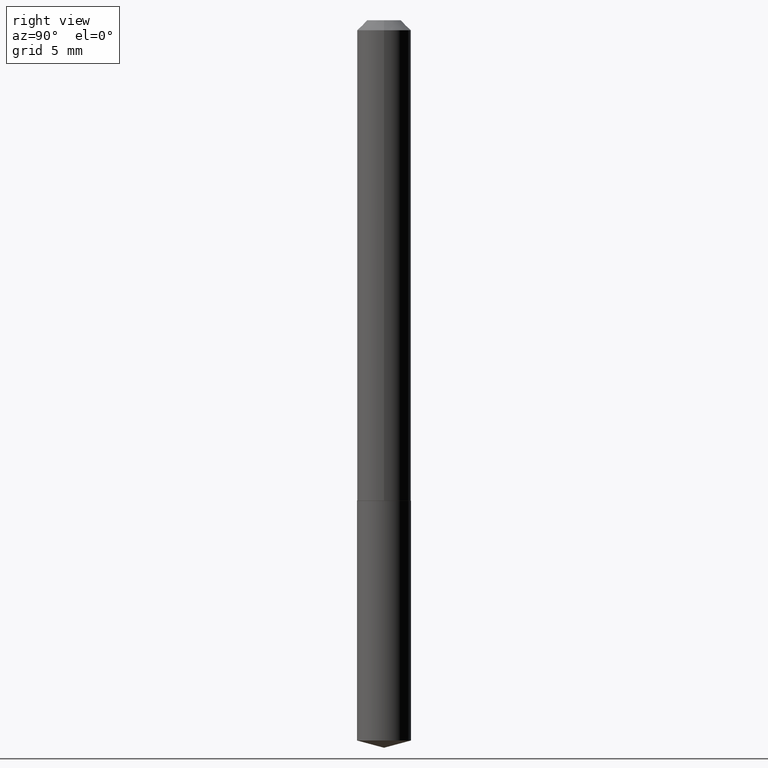
[diagram: clean part render]
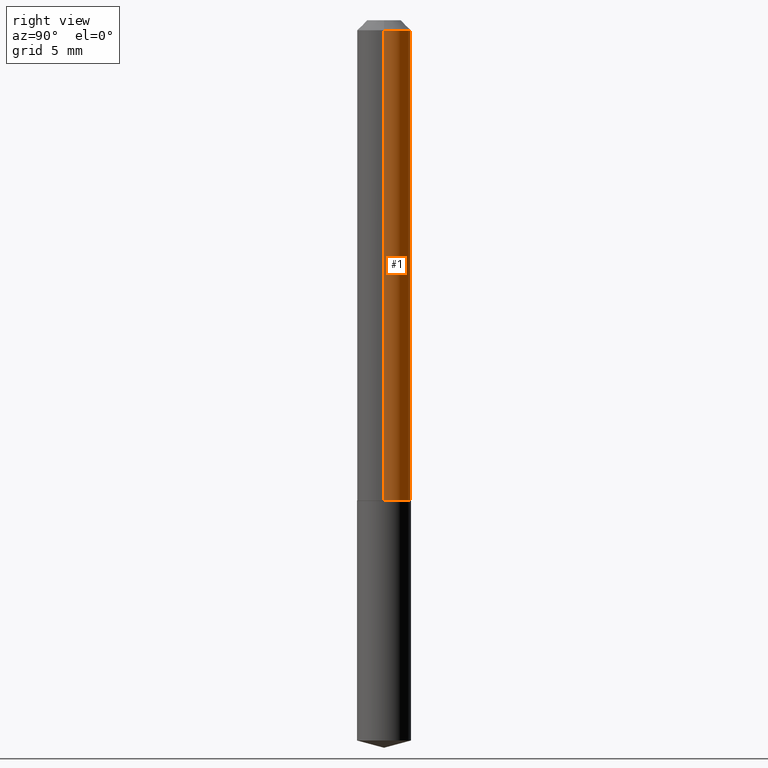
[diagram: same view with one face highlighted and labeled with its STEP entity id]
A machine part, right view. The second image highlights one B-rep face of the part: STEP entity #1.
In plain terms, the highlighted cylindrical surface (edge-blend (fillet) strip) has radius 2.1501 mm, axis along (-0, 0, 1).
Its self-contained STEP definition (entity closure, byte-faithful):
#1 = ADVANCED_FACE ( 'NONE', ( #94 ), #84, .T. ) ;
#11 = DIRECTION ( 'NONE',  ( -2.445468806185136877E-29, 3.491481338843145188E-15, 1.000000000000000000 ) ) ;
#18 = AXIS2_PLACEMENT_3D ( 'NONE', #199, #40, #160 ) ;
#27 = CARTESIAN_POINT ( 'NONE',  ( 0.000000000000000000, 0.000000000000000000, 0.000000000000000000 ) ) ;
#28 = LINE ( 'NONE', #109, #99 ) ;
#40 = DIRECTION ( 'NONE',  ( -2.445468806185136597E-29, 3.491481338843145583E-15, 1.000000000000000000 ) ) ;
#84 = CYLINDRICAL_SURFACE ( 'NONE', #218, 0.08465000000000010016 ) ;
#85 = EDGE_CURVE ( 'NONE', #130, #168, #275, .T. ) ;
#91 = ORIENTED_EDGE ( 'NONE', *, *, #85, .T. ) ;
#94 = FACE_OUTER_BOUND ( 'NONE', #274, .T. ) ;
#99 = VECTOR ( 'NONE', #321, 39.37007874015748143 ) ;
#109 = CARTESIAN_POINT ( 'NONE',  ( -0.08465000000000010016, 6.014744258209255191E-16, -4.163878553900782059E-30 ) ) ;
#118 = DIRECTION ( 'NONE',  ( -2.445468806185136597E-29, 3.491481338843145583E-15, 1.000000000000000000 ) ) ;
#130 = VERTEX_POINT ( 'NONE', #220 ) ;
#132 = ORIENTED_EDGE ( 'NONE', *, *, #200, .T. ) ;
#160 = DIRECTION ( 'NONE',  ( 1.000000000000000000, -6.982962677686265922E-15, 0.000000000000000000 ) ) ;
#168 = VERTEX_POINT ( 'NONE', #191 ) ;
#180 = CARTESIAN_POINT ( 'NONE',  ( 3.686299678443475330E-29, -5.263058970172158007E-15, -1.507400000000000073 ) ) ;
#182 = CIRCLE ( 'NONE', #18, 0.08465000000000001690 ) ;
#191 = CARTESIAN_POINT ( 'NONE',  ( -0.08465000000000018343, -4.661584544351232390E-15, -1.507400000000000073 ) ) ;
#196 = LINE ( 'NONE', #291, #219 ) ;
#199 = CARTESIAN_POINT ( 'NONE',  ( 7.642090019328601786E-31, -1.091087918388490144E-16, -0.03125000000000020123 ) ) ;
#200 = EDGE_CURVE ( 'NONE', #168, #250, #28, .T. ) ;
#202 = DIRECTION ( 'NONE',  ( 1.000000000000000000, -6.982962677686265922E-15, 4.876176775795935232E-29 ) ) ;
#212 = DIRECTION ( 'NONE',  ( 1.000000000000000000, -6.982962677686266711E-15, 0.000000000000000000 ) ) ;
#215 = ORIENTED_EDGE ( 'NONE', *, *, #277, .F. ) ;
#218 = AXIS2_PLACEMENT_3D ( 'NONE', #27, #118, #202 ) ;
#219 = VECTOR ( 'NONE', #11, 39.37007874015748143 ) ;
#220 = CARTESIAN_POINT ( 'NONE',  ( 0.08465000000000018343, -5.854166760838301993E-15, -1.507400000000000073 ) ) ;
#236 = VERTEX_POINT ( 'NONE', #252 ) ;
#250 = VERTEX_POINT ( 'NONE', #288 ) ;
#252 = CARTESIAN_POINT ( 'NONE',  ( 0.08465000000000001690, -7.002165825049916069E-16, -0.03125000000000020123 ) ) ;
#271 = DIRECTION ( 'NONE',  ( -2.445468806185136597E-29, 3.491481338843145583E-15, 1.000000000000000000 ) ) ;
#274 = EDGE_LOOP ( 'NONE', ( #91, #132, #328, #215 ) ) ;
#275 = CIRCLE ( 'NONE', #368, 0.08465000000000018343 ) ;
#277 = EDGE_CURVE ( 'NONE', #130, #236, #196, .T. ) ;
#288 = CARTESIAN_POINT ( 'NONE',  ( -0.08465000000000001690, -2.084609455184576753E-15, -0.03125000000000020123 ) ) ;
#291 = CARTESIAN_POINT ( 'NONE',  ( 0.08465000000000010016, -5.911077906661430979E-16, 4.127683640711264116E-30 ) ) ;
#305 = EDGE_CURVE ( 'NONE', #236, #250, #182, .T. ) ;
#321 = DIRECTION ( 'NONE',  ( -2.445468806185136877E-29, 3.491481338843145188E-15, 1.000000000000000000 ) ) ;
#328 = ORIENTED_EDGE ( 'NONE', *, *, #305, .F. ) ;
#368 = AXIS2_PLACEMENT_3D ( 'NONE', #180, #271, #212 ) ;